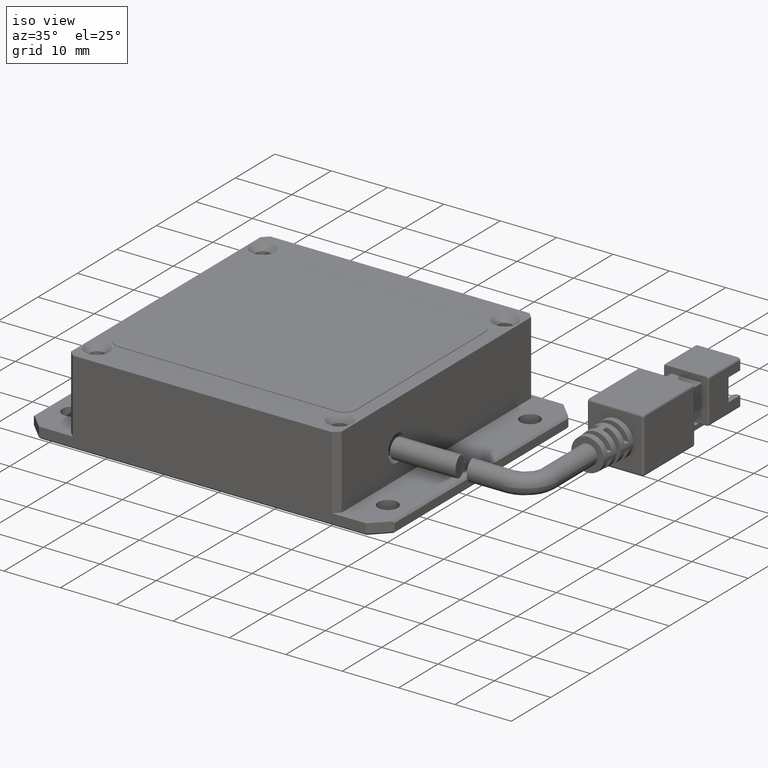
[diagram: clean part render]
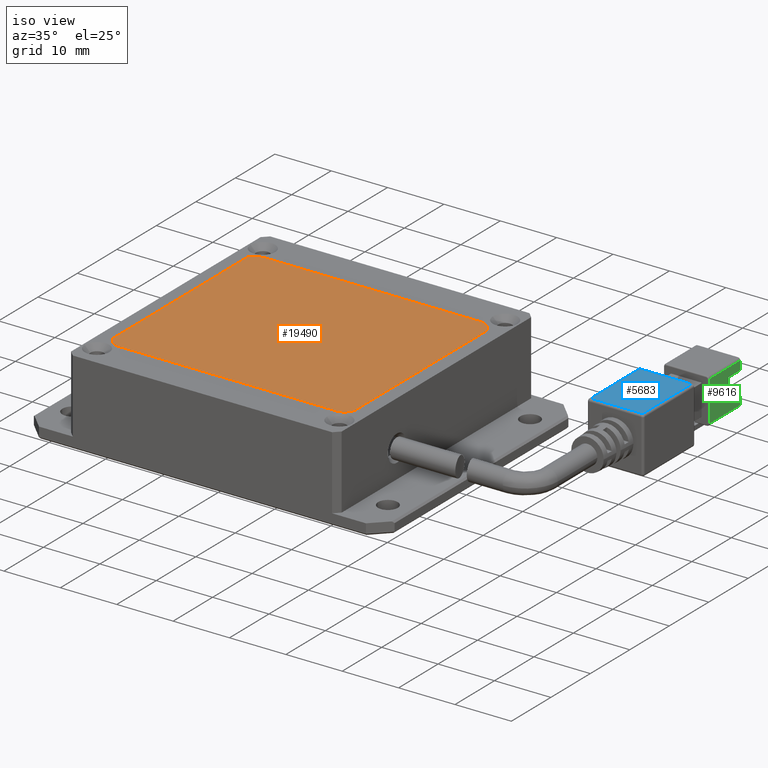
[diagram: same view with three faces highlighted in distinct colors, each labeled with its STEP entity id]
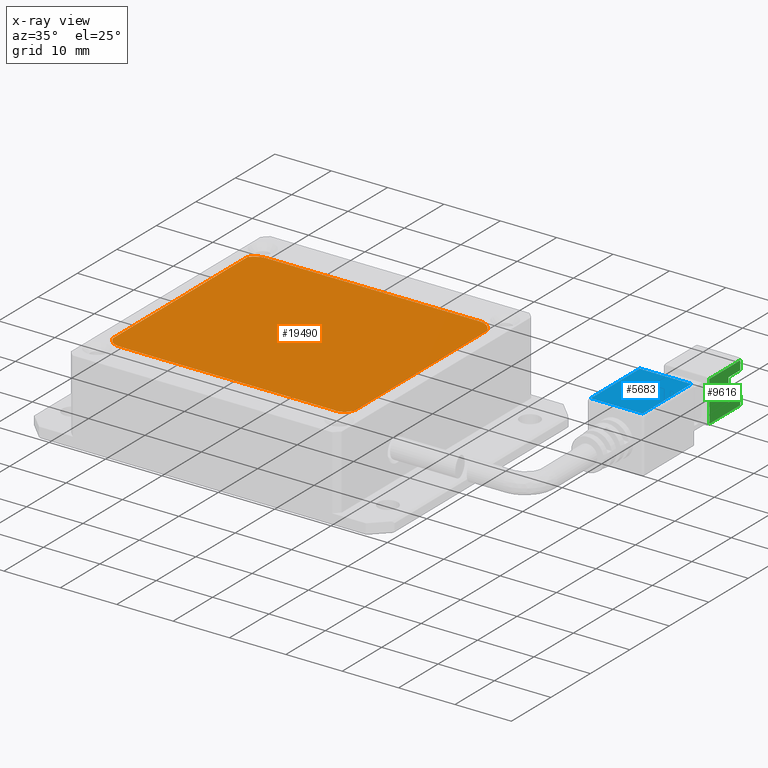
[diagram: x-ray of the same camera — body ghosted, the three highlighted faces saturated]
A machine part, iso view with three faces highlighted in distinct colors.
The next image is the same camera in x-ray (body ghosted, the three faces saturated) — at least one of them is partly hidden behind the body in this view.
Their STEP definitions:

[orange] entity #19490 — the highlighted planar face has unit normal (-0, 0, -1).
#132 = DIRECTION ( 'NONE',  ( 0.0000000000000000000, 0.0000000000000000000, 1.000000000000000000 ) ) ;
#272 = CIRCLE ( 'NONE', #17579, 2.821431938662586300 ) ;
#402 = ORIENTED_EDGE ( 'NONE', *, *, #2522, .T. ) ;
#945 = CARTESIAN_POINT ( 'NONE',  ( -22.40683466972126700, 19.38628632309804800, 13.09999999998369100 ) ) ;
#1359 = CARTESIAN_POINT ( 'NONE',  ( -19.94927597337307600, 17.62137133524542800, 13.09999999998369100 ) ) ;
#1594 = ORIENTED_EDGE ( 'NONE', *, *, #10945, .T. ) ;
#2171 = CIRCLE ( 'NONE', #7537, 2.152582791056338400 ) ;
#2287 = LINE ( 'NONE', #3978, #18152 ) ;
#2484 = CARTESIAN_POINT ( 'NONE',  ( -19.88397062032537500, 20.64631015631383800, 13.09999999998369100 ) ) ;
#2522 = EDGE_CURVE ( 'NONE', #10949, #17943, #9412, .T. ) ;
#2874 = PLANE ( 'NONE',  #10918 ) ;
#2933 = DIRECTION ( 'NONE',  ( -1.000000000000000000, 0.0000000000000000000, 0.0000000000000000000 ) ) ;
#3180 = VECTOR ( 'NONE', #18361, 1000.000000000000000 ) ;
#3218 = VECTOR ( 'NONE', #7726, 1000.000000000000000 ) ;
#3699 = LINE ( 'NONE', #12467, #3218 ) ;
#3978 = CARTESIAN_POINT ( 'NONE',  ( -19.88397062032537500, 20.64631015631383800, 13.09999999998369100 ) ) ;
#4056 = CARTESIAN_POINT ( 'NONE',  ( -19.66498328437758800, -16.50904925542707600, 13.09999999998369100 ) ) ;
#4497 = FACE_OUTER_BOUND ( 'NONE', #16443, .T. ) ;
#4700 = CARTESIAN_POINT ( 'NONE',  ( 18.00368343727945600, 20.64631015631383800, 13.09999999998369100 ) ) ;
#4767 = EDGE_CURVE ( 'NONE', #7838, #6419, #4849, .T. ) ;
#4849 = CIRCLE ( 'NONE', #11023, 3.025643677028646600 ) ;
#4858 = CARTESIAN_POINT ( 'NONE',  ( 20.59316533027872600, -14.67035368407021800, 13.09999999998369100 ) ) ;
#4865 = DIRECTION ( 'NONE',  ( 0.0000000000000000000, 0.0000000000000000000, 1.000000000000000000 ) ) ;
#6357 = DIRECTION ( 'NONE',  ( 0.0000000000000000000, 0.0000000000000000000, 1.000000000000000000 ) ) ;
#6419 = VERTEX_POINT ( 'NONE', #945 ) ;
#6671 = EDGE_CURVE ( 'NONE', #17943, #9755, #272, .T. ) ;
#6964 = AXIS2_PLACEMENT_3D ( 'NONE', #15788, #6357, #17407 ) ;
#7041 = ORIENTED_EDGE ( 'NONE', *, *, #12765, .T. ) ;
#7300 = CARTESIAN_POINT ( 'NONE',  ( 20.59316533027872600, -14.67035368407021800, 13.09999999998369100 ) ) ;
#7443 = ORIENTED_EDGE ( 'NONE', *, *, #14837, .T. ) ;
#7537 = AXIS2_PLACEMENT_3D ( 'NONE', #18948, #9466, #20543 ) ;
#7726 = DIRECTION ( 'NONE',  ( 1.000000000000000000, 0.0000000000000000000, 0.0000000000000000000 ) ) ;
#7743 = VERTEX_POINT ( 'NONE', #18142 ) ;
#7838 = VERTEX_POINT ( 'NONE', #2484 ) ;
#8672 = EDGE_CURVE ( 'NONE', #20455, #7743, #3699, .T. ) ;
#9412 = LINE ( 'NONE', #4858, #16802 ) ;
#9439 = CIRCLE ( 'NONE', #6964, 2.646187890382241600 ) ;
#9466 = DIRECTION ( 'NONE',  ( 0.0000000000000000000, 0.0000000000000000000, 1.000000000000000000 ) ) ;
#9596 = CARTESIAN_POINT ( 'NONE',  ( -19.94927597337307600, 17.62137133524542800, 13.09999999998369100 ) ) ;
#9755 = VERTEX_POINT ( 'NONE', #4700 ) ;
#10324 = CARTESIAN_POINT ( 'NONE',  ( -22.40683466972126700, -14.67035368407021800, 13.09999999998369100 ) ) ;
#10918 = AXIS2_PLACEMENT_3D ( 'NONE', #1359, #12394, #2933 ) ;
#10945 = EDGE_CURVE ( 'NONE', #6419, #12713, #15286, .T. ) ;
#10949 = VERTEX_POINT ( 'NONE', #7300 ) ;
#11023 = AXIS2_PLACEMENT_3D ( 'NONE', #9596, #132, #11161 ) ;
#11161 = DIRECTION ( 'NONE',  ( -1.000000000000000000, 0.0000000000000000000, 0.0000000000000000000 ) ) ;
#11707 = ORIENTED_EDGE ( 'NONE', *, *, #8672, .T. ) ;
#12394 = DIRECTION ( 'NONE',  ( -0.0000000000000000000, 0.0000000000000000000, -1.000000000000000000 ) ) ;
#12467 = CARTESIAN_POINT ( 'NONE',  ( -19.66498328437758800, -16.50904925542707600, 13.09999999998369100 ) ) ;
#12624 = ORIENTED_EDGE ( 'NONE', *, *, #4767, .T. ) ;
#12713 = VERTEX_POINT ( 'NONE', #19731 ) ;
#12765 = EDGE_CURVE ( 'NONE', #9755, #7838, #2287, .T. ) ;
#13339 = ORIENTED_EDGE ( 'NONE', *, *, #6671, .T. ) ;
#13365 = EDGE_CURVE ( 'NONE', #12713, #20455, #9439, .T. ) ;
#13447 = DIRECTION ( 'NONE',  ( -1.000000000000000000, -0.0000000000000000000, -0.0000000000000000000 ) ) ;
#14113 = CARTESIAN_POINT ( 'NONE',  ( 20.59316533027872600, 18.61088704111909600, 13.09999999998369100 ) ) ;
#14301 = CARTESIAN_POINT ( 'NONE',  ( 17.88267781039737200, 17.82747425779683000, 13.09999999998369100 ) ) ;
#14837 = EDGE_CURVE ( 'NONE', #7743, #10949, #2171, .T. ) ;
#15286 = LINE ( 'NONE', #10324, #3180 ) ;
#15788 = CARTESIAN_POINT ( 'NONE',  ( -19.88397062032537500, -13.87193816601501000, 13.09999999998369100 ) ) ;
#15860 = DIRECTION ( 'NONE',  ( 0.0000000000000000000, 1.000000000000000000, 0.0000000000000000000 ) ) ;
#15865 = DIRECTION ( 'NONE',  ( -1.000000000000000000, 0.0000000000000000000, 0.0000000000000000000 ) ) ;
#16443 = EDGE_LOOP ( 'NONE', ( #12624, #1594, #19664, #11707, #7443, #402, #13339, #7041 ) ) ;
#16802 = VECTOR ( 'NONE', #15860, 1000.000000000000000 ) ;
#17407 = DIRECTION ( 'NONE',  ( -1.000000000000000000, 0.0000000000000000000, 0.0000000000000000000 ) ) ;
#17579 = AXIS2_PLACEMENT_3D ( 'NONE', #14301, #4865, #15865 ) ;
#17943 = VERTEX_POINT ( 'NONE', #14113 ) ;
#18142 = CARTESIAN_POINT ( 'NONE',  ( 18.00368343727945900, -16.50904925542707200, 13.09999999998369100 ) ) ;
#18152 = VECTOR ( 'NONE', #13447, 1000.000000000000000 ) ;
#18361 = DIRECTION ( 'NONE',  ( -0.0000000000000000000, -1.000000000000000000, -0.0000000000000000000 ) ) ;
#18948 = CARTESIAN_POINT ( 'NONE',  ( 18.45703195761590700, -14.40474704532020500, 13.09999999998369100 ) ) ;
#19490 = ADVANCED_FACE ( 'NONE', ( #4497 ), #2874, .F. ) ;
#19664 = ORIENTED_EDGE ( 'NONE', *, *, #13365, .T. ) ;
#19731 = CARTESIAN_POINT ( 'NONE',  ( -22.40683466972126700, -14.67035368407022000, 13.09999999998369100 ) ) ;
#20455 = VERTEX_POINT ( 'NONE', #4056 ) ;
#20543 = DIRECTION ( 'NONE',  ( 1.000000000000000000, 0.0000000000000000000, 0.0000000000000000000 ) ) ;

[blue] entity #5683 — the highlighted planar face has unit normal (-0, -0, -1).
#1197 = LINE ( 'NONE', #5370, #9605 ) ;
#1218 = EDGE_CURVE ( 'NONE', #18379, #18992, #19483, .T. ) ;
#1424 = ORIENTED_EDGE ( 'NONE', *, *, #1218, .F. ) ;
#2226 = CARTESIAN_POINT ( 'NONE',  ( 42.09316533027873000, 13.69095074455903200, 9.999999999983701900 ) ) ;
#2767 = ORIENTED_EDGE ( 'NONE', *, *, #3386, .F. ) ;
#2887 = VECTOR ( 'NONE', #4179, 1000.000000000000000 ) ;
#2932 = DIRECTION ( 'NONE',  ( -2.588449845256445000E-031, -2.672764710092196000E-049, -1.000000000000000000 ) ) ;
#3386 = EDGE_CURVE ( 'NONE', #18992, #17979, #1197, .T. ) ;
#3626 = VECTOR ( 'NONE', #14884, 1000.000000000000000 ) ;
#4081 = CARTESIAN_POINT ( 'NONE',  ( 42.49316533027872800, 26.09095074455903400, 9.999999999983701900 ) ) ;
#4179 = DIRECTION ( 'NONE',  ( -3.081487911019577400E-033, 1.000000000000000000, -2.672764710092188000E-049 ) ) ;
#4624 = ORIENTED_EDGE ( 'NONE', *, *, #11798, .F. ) ;
#5370 = CARTESIAN_POINT ( 'NONE',  ( 51.69316533027873100, 26.29095074455903400, 9.999999999983700100 ) ) ;
#5683 = ADVANCED_FACE ( 'NONE', ( #18878 ), #6060, .F. ) ;
#6060 = PLANE ( 'NONE',  #19702 ) ;
#6858 = VECTOR ( 'NONE', #9673, 1000.000000000000000 ) ;
#7377 = CARTESIAN_POINT ( 'NONE',  ( 42.49316533027872800, 26.29095074455903400, 9.999999999983701900 ) ) ;
#9605 = VECTOR ( 'NONE', #16375, 1000.000000000000000 ) ;
#9673 = DIRECTION ( 'NONE',  ( 1.000000000000000000, 3.081487911019577400E-033, -2.588449845256445000E-031 ) ) ;
#11291 = LINE ( 'NONE', #7377, #2887 ) ;
#11500 = CARTESIAN_POINT ( 'NONE',  ( 42.09316533027873000, 26.09095074455903400, 9.999999999983701900 ) ) ;
#11798 = EDGE_CURVE ( 'NONE', #17979, #18978, #13239, .T. ) ;
#12348 = CARTESIAN_POINT ( 'NONE',  ( 42.49316533027872800, 13.69095074455903200, 9.999999999983701900 ) ) ;
#12393 = CARTESIAN_POINT ( 'NONE',  ( 42.09316533027873000, 26.29095074455903400, 9.999999999983701900 ) ) ;
#12528 = CARTESIAN_POINT ( 'NONE',  ( 51.69316533027873100, 13.69095074455903200, 9.999999999983700100 ) ) ;
#13239 = LINE ( 'NONE', #2226, #3626 ) ;
#13974 = ORIENTED_EDGE ( 'NONE', *, *, #15726, .F. ) ;
#13982 = DIRECTION ( 'NONE',  ( -1.000000000000000000, -3.081487911019577400E-033, 2.588449845256445000E-031 ) ) ;
#14884 = DIRECTION ( 'NONE',  ( -1.000000000000000000, -3.081487911019577400E-033, 2.588449845256445000E-031 ) ) ;
#15726 = EDGE_CURVE ( 'NONE', #18978, #18379, #11291, .T. ) ;
#16375 = DIRECTION ( 'NONE',  ( 3.081487911019577400E-033, -1.000000000000000000, 2.672764710092188000E-049 ) ) ;
#16698 = EDGE_LOOP ( 'NONE', ( #1424, #13974, #4624, #2767 ) ) ;
#17979 = VERTEX_POINT ( 'NONE', #12528 ) ;
#18379 = VERTEX_POINT ( 'NONE', #4081 ) ;
#18878 = FACE_OUTER_BOUND ( 'NONE', #16698, .T. ) ;
#18978 = VERTEX_POINT ( 'NONE', #12348 ) ;
#18992 = VERTEX_POINT ( 'NONE', #20312 ) ;
#19483 = LINE ( 'NONE', #11500, #6858 ) ;
#19702 = AXIS2_PLACEMENT_3D ( 'NONE', #12393, #2932, #13982 ) ;
#20312 = CARTESIAN_POINT ( 'NONE',  ( 51.69316533027873100, 26.09095074455903400, 9.999999999983701900 ) ) ;

[green] entity #9616 — the highlighted planar face has unit normal (-1, -0, -0).
#232 = EDGE_CURVE ( 'NONE', #17675, #13935, #17270, .T. ) ;
#523 = ORIENTED_EDGE ( 'NONE', *, *, #8484, .F. ) ;
#850 = DIRECTION ( 'NONE',  ( 3.081487911019577400E-033, -1.000000000000000000, 2.672764710092188000E-049 ) ) ;
#1249 = DIRECTION ( 'NONE',  ( -8.673617379884010800E-017, 0.0000000000000000000, 1.000000000000000000 ) ) ;
#1562 = ORIENTED_EDGE ( 'NONE', *, *, #6957, .F. ) ;
#2119 = LINE ( 'NONE', #18396, #14233 ) ;
#2314 = EDGE_LOOP ( 'NONE', ( #16411, #13460, #17020, #17990, #16133, #1562, #2907, #523 ) ) ;
#2469 = VECTOR ( 'NONE', #9175, 1000.000000000000000 ) ;
#2755 = PLANE ( 'NONE',  #5624 ) ;
#2907 = ORIENTED_EDGE ( 'NONE', *, *, #14168, .F. ) ;
#3033 = EDGE_CURVE ( 'NONE', #15612, #17675, #8660, .T. ) ;
#3228 = CARTESIAN_POINT ( 'NONE',  ( 51.09316533027874400, 39.29095074455904100, 8.999999999983691300 ) ) ;
#4235 = VERTEX_POINT ( 'NONE', #17766 ) ;
#4834 = DIRECTION ( 'NONE',  ( 8.673617379884010800E-017, -0.0000000000000000000, -1.000000000000000000 ) ) ;
#5276 = VERTEX_POINT ( 'NONE', #9811 ) ;
#5389 = CARTESIAN_POINT ( 'NONE',  ( 51.09316533027874400, 36.29095074455903400, 2.999999999983692200 ) ) ;
#5487 = CARTESIAN_POINT ( 'NONE',  ( 51.09316533027874400, 39.29095074455904100, 6.999999999983693000 ) ) ;
#5624 = AXIS2_PLACEMENT_3D ( 'NONE', #20197, #10694, #1249 ) ;
#6898 = CARTESIAN_POINT ( 'NONE',  ( 51.09316533027874400, 36.29095074455903400, 6.999999999983693000 ) ) ;
#6951 = CARTESIAN_POINT ( 'NONE',  ( 51.09316533027874400, 31.49095074455902900, 8.999999999983691300 ) ) ;
#6957 = EDGE_CURVE ( 'NONE', #10455, #17310, #20277, .T. ) ;
#7574 = CARTESIAN_POINT ( 'NONE',  ( 51.09316533027874400, 39.29095074455904100, 0.9999999999836901600 ) ) ;
#7708 = EDGE_CURVE ( 'NONE', #13935, #5276, #12188, .T. ) ;
#7922 = CARTESIAN_POINT ( 'NONE',  ( 51.09316533027874400, 31.49095074455902900, 1.399999999983690700 ) ) ;
#8484 = EDGE_CURVE ( 'NONE', #5276, #4235, #15086, .T. ) ;
#8623 = CARTESIAN_POINT ( 'NONE',  ( 51.09316533027874400, 39.29095074455904100, 6.999999999983693000 ) ) ;
#8660 = LINE ( 'NONE', #3228, #16539 ) ;
#8924 = DIRECTION ( 'NONE',  ( -3.081487911019577400E-033, 1.000000000000000000, -2.672764710092188000E-049 ) ) ;
#9175 = DIRECTION ( 'NONE',  ( -3.081487911019577400E-033, 1.000000000000000000, -2.672764710092188000E-049 ) ) ;
#9551 = EDGE_CURVE ( 'NONE', #15645, #15612, #2119, .T. ) ;
#9616 = ADVANCED_FACE ( 'NONE', ( #12262 ), #2755, .F. ) ;
#9665 = LINE ( 'NONE', #7574, #13355 ) ;
#9727 = DIRECTION ( 'NONE',  ( 8.673617379884010800E-017, -0.0000000000000000000, -1.000000000000000000 ) ) ;
#9811 = CARTESIAN_POINT ( 'NONE',  ( 51.09316533027874400, 31.49095074455902900, 8.599999999983690900 ) ) ;
#10298 = EDGE_CURVE ( 'NONE', #17310, #15645, #10763, .T. ) ;
#10455 = VERTEX_POINT ( 'NONE', #8623 ) ;
#10694 = DIRECTION ( 'NONE',  ( -1.000000000000000000, -3.081487911019577400E-033, -8.673617379884010800E-017 ) ) ;
#10719 = DIRECTION ( 'NONE',  ( 8.673617379884010800E-017, 0.0000000000000000000, -1.000000000000000000 ) ) ;
#10763 = LINE ( 'NONE', #14475, #14959 ) ;
#10831 = CARTESIAN_POINT ( 'NONE',  ( 51.09316533027874400, 39.29095074455904100, 8.599999999983690900 ) ) ;
#11780 = CARTESIAN_POINT ( 'NONE',  ( 51.09316533027874400, 39.29095074455904100, 2.999999999983692200 ) ) ;
#11840 = VECTOR ( 'NONE', #850, 1000.000000000000000 ) ;
#12188 = LINE ( 'NONE', #6951, #15868 ) ;
#12262 = FACE_OUTER_BOUND ( 'NONE', #2314, .T. ) ;
#12643 = CARTESIAN_POINT ( 'NONE',  ( 51.09316533027874400, 39.29095074455904100, 1.399999999983690700 ) ) ;
#13042 = VECTOR ( 'NONE', #18814, 1000.000000000000000 ) ;
#13355 = VECTOR ( 'NONE', #10719, 1000.000000000000000 ) ;
#13460 = ORIENTED_EDGE ( 'NONE', *, *, #232, .F. ) ;
#13935 = VERTEX_POINT ( 'NONE', #7922 ) ;
#14168 = EDGE_CURVE ( 'NONE', #4235, #10455, #9665, .T. ) ;
#14233 = VECTOR ( 'NONE', #8924, 1000.000000000000000 ) ;
#14475 = CARTESIAN_POINT ( 'NONE',  ( 51.09316533027874400, 36.29095074455903400, 8.999999999983691300 ) ) ;
#14959 = VECTOR ( 'NONE', #9727, 1000.000000000000000 ) ;
#15086 = LINE ( 'NONE', #10831, #2469 ) ;
#15612 = VERTEX_POINT ( 'NONE', #11780 ) ;
#15645 = VERTEX_POINT ( 'NONE', #5389 ) ;
#15868 = VECTOR ( 'NONE', #19605, 1000.000000000000000 ) ;
#16133 = ORIENTED_EDGE ( 'NONE', *, *, #10298, .F. ) ;
#16411 = ORIENTED_EDGE ( 'NONE', *, *, #7708, .F. ) ;
#16539 = VECTOR ( 'NONE', #4834, 1000.000000000000000 ) ;
#17020 = ORIENTED_EDGE ( 'NONE', *, *, #3033, .F. ) ;
#17270 = LINE ( 'NONE', #19388, #13042 ) ;
#17310 = VERTEX_POINT ( 'NONE', #6898 ) ;
#17675 = VERTEX_POINT ( 'NONE', #12643 ) ;
#17766 = CARTESIAN_POINT ( 'NONE',  ( 51.09316533027874400, 39.29095074455904100, 8.599999999983692700 ) ) ;
#17990 = ORIENTED_EDGE ( 'NONE', *, *, #9551, .F. ) ;
#18396 = CARTESIAN_POINT ( 'NONE',  ( 51.09316533027874400, 39.29095074455904100, 2.999999999983692200 ) ) ;
#18814 = DIRECTION ( 'NONE',  ( 3.081487911019577400E-033, -1.000000000000000000, 2.672764710092188000E-049 ) ) ;
#19388 = CARTESIAN_POINT ( 'NONE',  ( 51.09316533027874400, 39.29095074455904100, 1.399999999983690700 ) ) ;
#19605 = DIRECTION ( 'NONE',  ( -8.673617379884010800E-017, -0.0000000000000000000, 1.000000000000000000 ) ) ;
#20197 = CARTESIAN_POINT ( 'NONE',  ( 51.09316533027874400, 39.29095074455904100, 8.999999999983691300 ) ) ;
#20277 = LINE ( 'NONE', #5487, #11840 ) ;